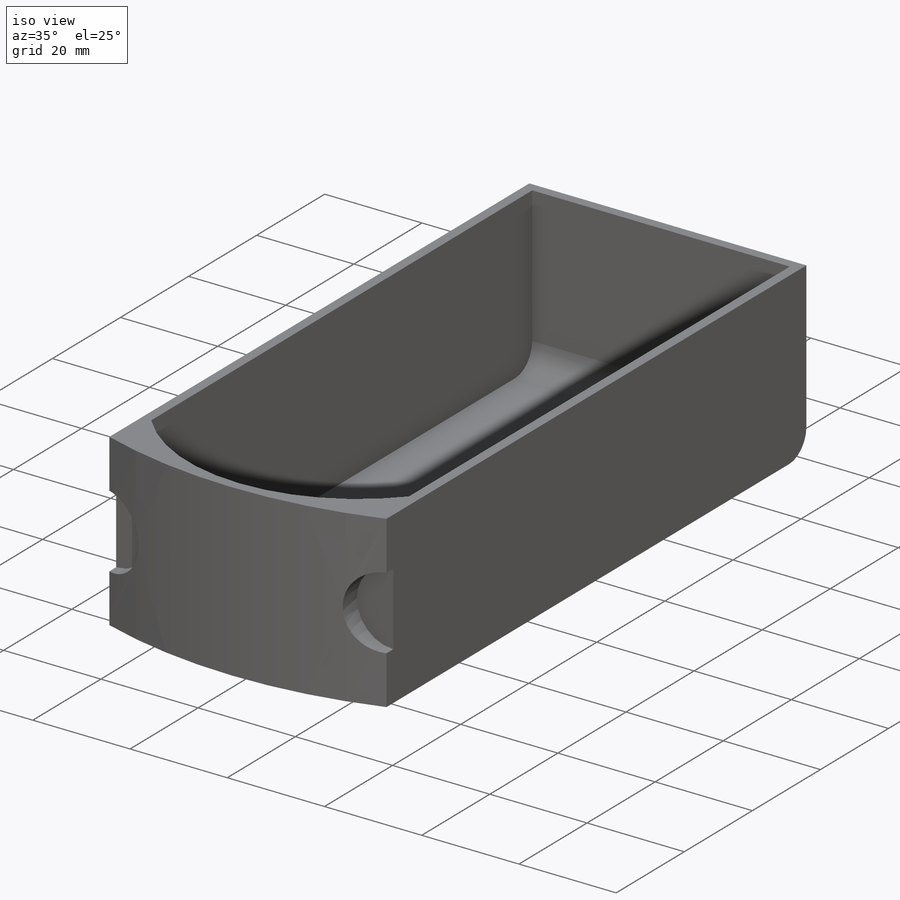
[diagram: iso view]
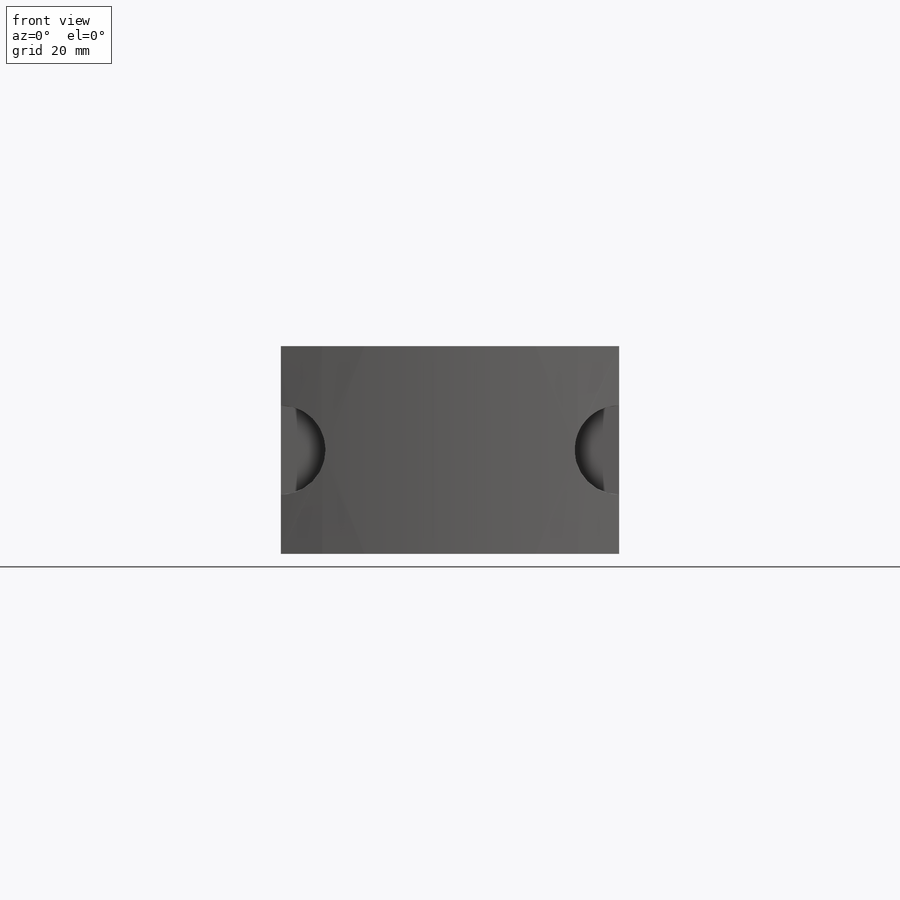
[diagram: front view]
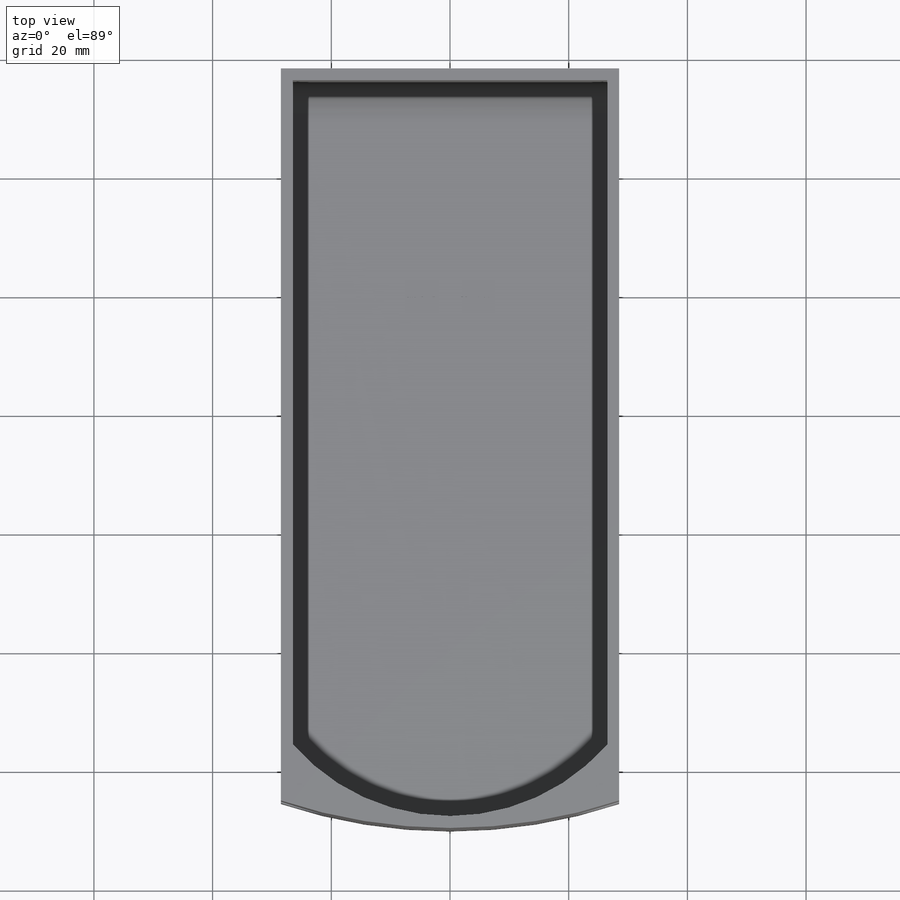
[diagram: top view]
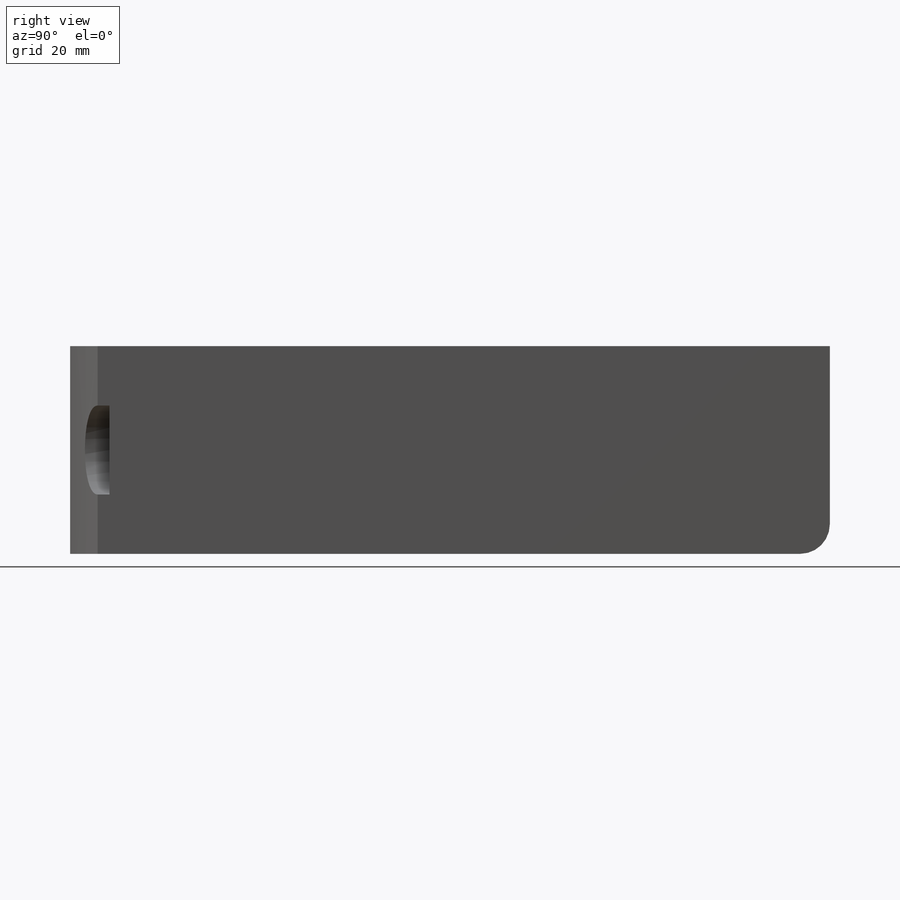
[diagram: right view]
SOLIDWORKS PART (.sldprt)
format: sldprt  version: not decoded by parser v0  size: 240,128 bytes
history: native  units: mm
features: sketch x6, plane x4, cut_extrude x4, extrude x2, material x1, shell x1, fillet x1 (+9 scaffold rows collapsed)
feature tree (28):
  scaffold x9  (default folders/planes/origin — collapsed)
  material  "ABS"
  plane  "Plano frontal"
  plane  "Plano superior"
  plane  "Plano direito"
  sketch  "Esboço2"  dims[D1=180.0mm D2=38.0mm D3=57.0mm]
  extrude  "Ressalto-extrusão1"  Depth=35mm
  plane  "Plano1"
  sketch  "Esboço3"  dims[D1=15.0mm]
  cut_extrude  "Corte-extrusão1"  Depth=2mm
  shell  "Casca1"  Thickness=2mm
  sketch  "Esboço4"  dims[D1=8.0mm]
  extrude  "Ressalto-extrusão3"  [1 undecoded]
  sketch  "Esboço5"  dims[D1=3.0mm]
  cut_extrude  "Corte-extrusão4"  [1 undecoded]
  sketch  "Esboço6"  dims[c1.D1=~2.682465mm c2.D1=90.0deg c3.D1=3.0mm]
  cut_extrude  "Corte-extrusão5"  [1 undecoded]
  cut_extrude  "Corte-extrusão6"  [1 undecoded]
  sketch  "Esboço4<5>"
  fillet  "Filete1"  Radius=5mm
decode coverage: 9 of 14 modeling features carry decoded parameters
note: ~ marks probable driven/reference dimensions
note: 4 parameter values undecoded
summary: no parameter record found for 4 features
note: suppression state not decoded; provenance and decode notes live in map.json
